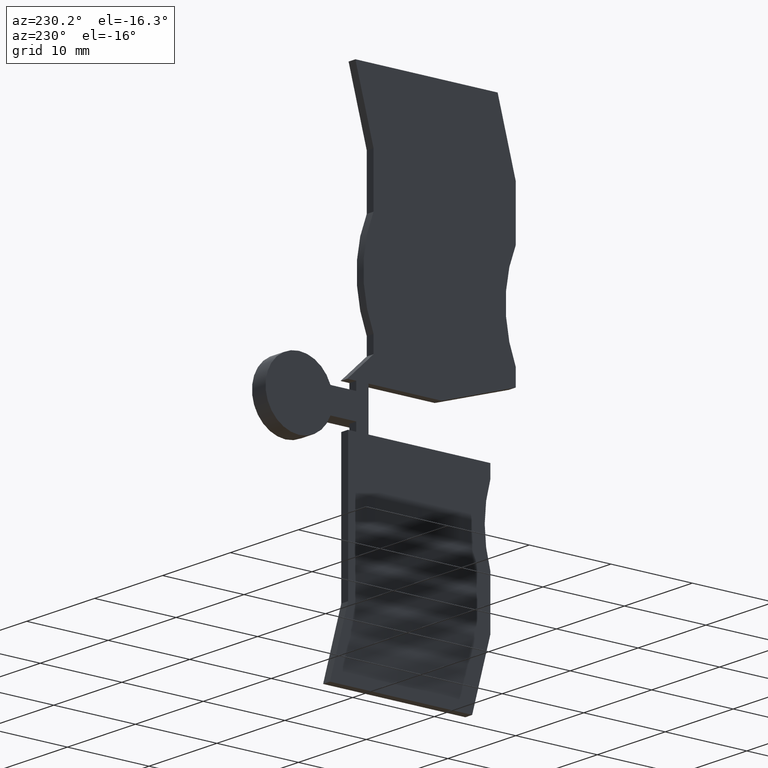
[diagram: clean part render]
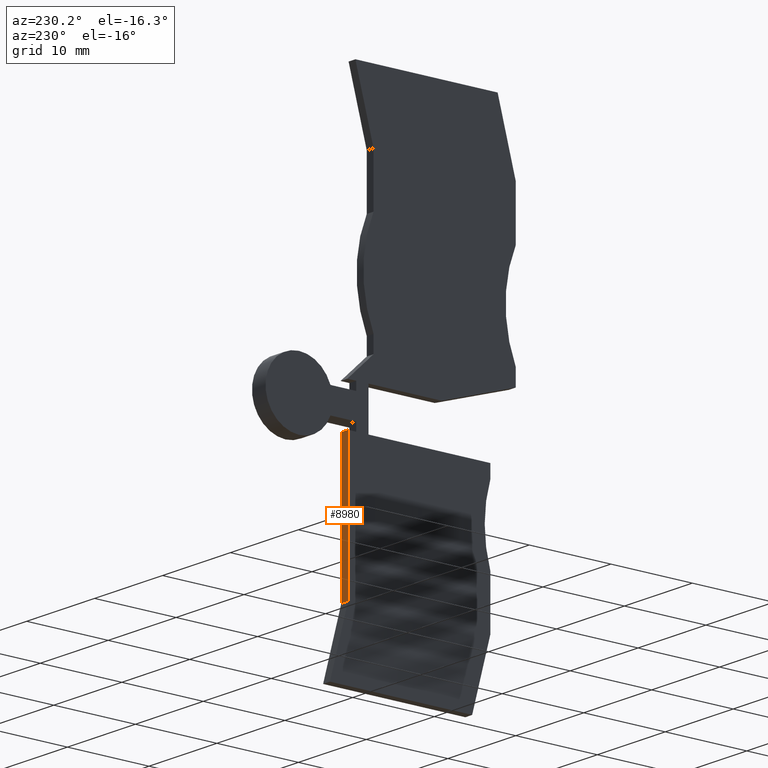
[diagram: same view with one face highlighted and labeled with its STEP entity id]
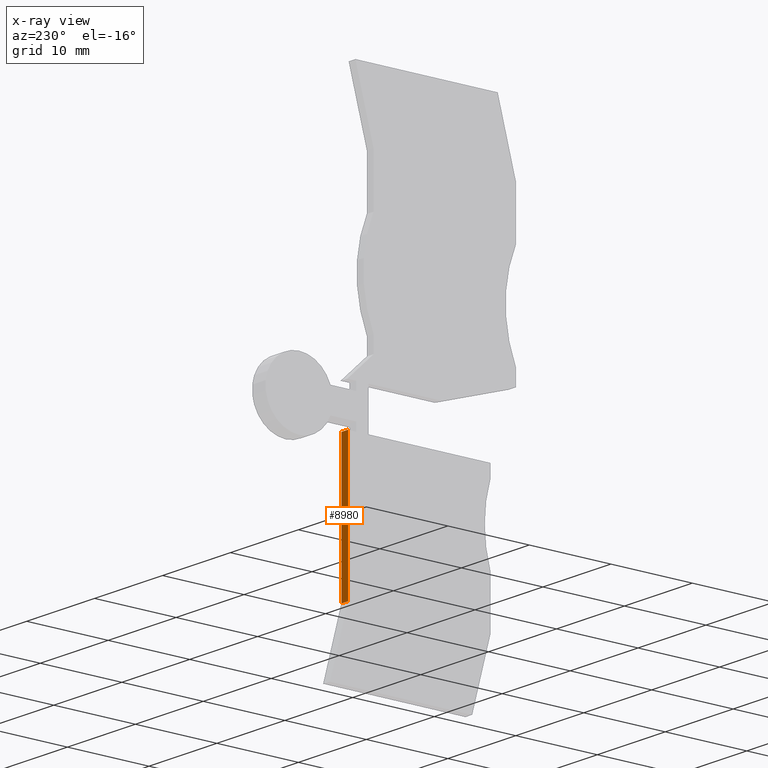
[diagram: x-ray of the same camera — body ghosted, the highlighted face saturated]
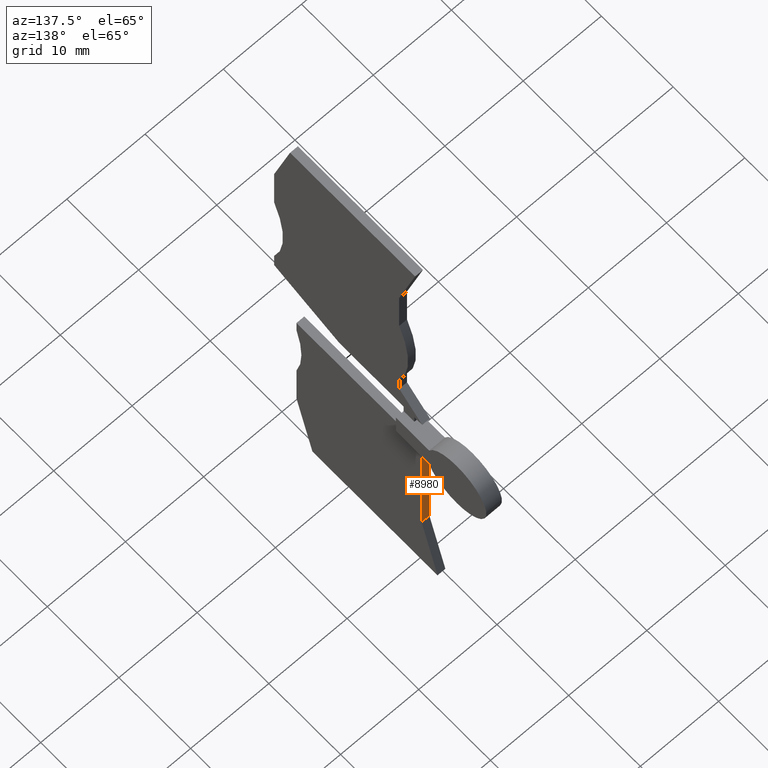
[diagram: same view with one face highlighted and labeled with its STEP entity id]
A machine part, auxiliary view. The second image highlights one B-rep face of the part: STEP entity #8980.
The next image is the same camera in x-ray: the body ghosted, the highlighted face saturated — about 0% of this face is hidden behind the body in this view.
A second angle (auxiliary view) of the same face is appended — the face is thin or edge-on in the first view.
In plain terms, the highlighted planar face has unit normal (0, 1, 0).
Its self-contained STEP definition (entity closure, byte-faithful):
#3580=CARTESIAN_POINT('',(10.3426050903255,-34.717812366217,
3.70000000003257));
#3590=VERTEX_POINT('',#3580);
#3640=CARTESIAN_POINT('',(10.3426050903255,-34.717812366217,
2.70000000003257));
#3650=DIRECTION('',(0.,0.,-1.));
#3660=VECTOR('',#3650,1.);
#3670=LINE('',#3640,#3660);
#3680=CARTESIAN_POINT('',(10.3426050903255,-34.7178123662171,
4.70000000003257));
#3690=VERTEX_POINT('',#3680);
#3700=EDGE_CURVE('',#3690,#3590,#3670,.T.);
#4320=CARTESIAN_POINT('',(10.3426050903255,6.334125,3.70000000003257));
#4330=DIRECTION('',(-1.83847064084899E-17,-1.,0.));
#4340=VECTOR('',#4330,1.);
#4350=LINE('',#4320,#4340);
#4360=CARTESIAN_POINT('',(10.3426050903255,-17.8833568228378,
3.70000000003257));
#4370=VERTEX_POINT('',#4360);
#4380=EDGE_CURVE('',#4370,#3590,#4350,.T.);
#5720=CARTESIAN_POINT('',(10.3426050903255,6.334125,4.70000000003257));
#5730=DIRECTION('',(1.83847064084899E-17,1.,0.));
#5740=VECTOR('',#5730,1.);
#5750=LINE('',#5720,#5740);
#5760=CARTESIAN_POINT('',(10.3426050903255,-17.8833568228378,
4.70000000003257));
#5770=VERTEX_POINT('',#5760);
#5780=EDGE_CURVE('',#3690,#5770,#5750,.T.);
#8820=CARTESIAN_POINT('',(10.3426050903255,-11.9035228228394,
4.80000000003257));
#8830=DIRECTION('',(-1.,1.83847064084899E-17,0.));
#8840=DIRECTION('',(-1.83847064084899E-17,-1.,0.));
#8850=AXIS2_PLACEMENT_3D('',#8820,#8830,#8840);
#8860=PLANE('',#8850);
#8870=ORIENTED_EDGE('',*,*,#5780,.T.);
#8880=ORIENTED_EDGE('',*,*,#3700,.F.);
#8890=ORIENTED_EDGE('',*,*,#4380,.T.);
#8900=CARTESIAN_POINT('',(10.3426050903255,-17.8833568228378,
2.70000000003257));
#8910=DIRECTION('',(0.,0.,1.));
#8920=VECTOR('',#8910,1.);
#8930=LINE('',#8900,#8920);
#8940=EDGE_CURVE('',#4370,#5770,#8930,.T.);
#8950=ORIENTED_EDGE('',*,*,#8940,.F.);
#8960=EDGE_LOOP('',(#8950,#8890,#8880,#8870));
#8970=FACE_OUTER_BOUND('',#8960,.T.);
#8980=ADVANCED_FACE('',(#8970),#8860,.T.);